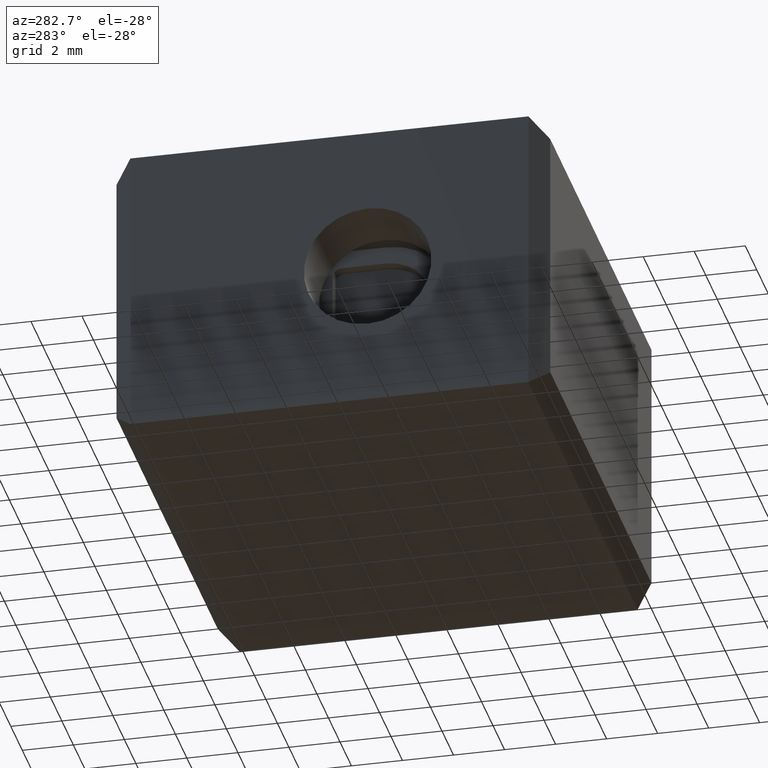
[diagram: clean part render]
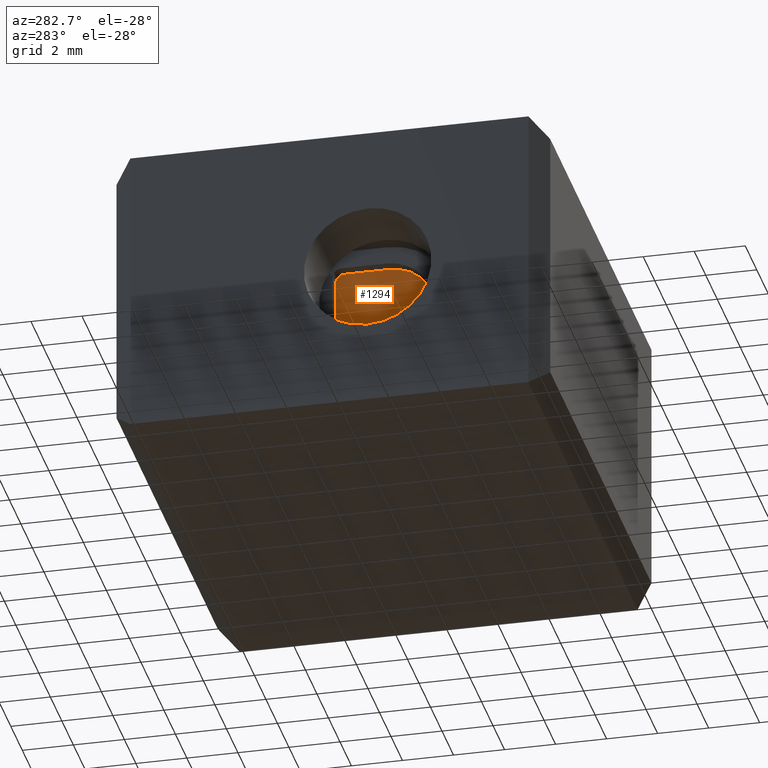
[diagram: same view with one face highlighted and labeled with its STEP entity id]
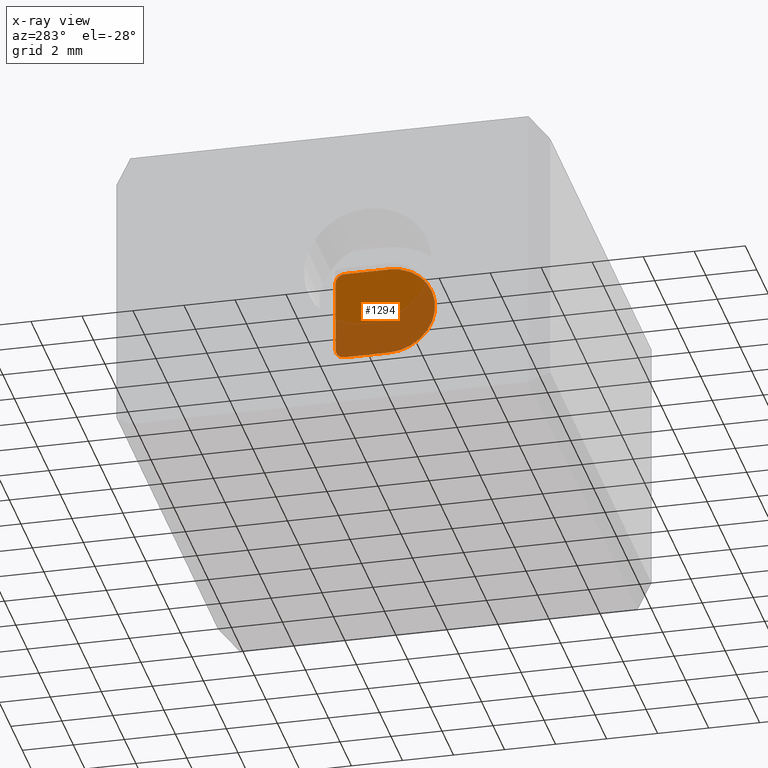
[diagram: x-ray of the same camera — body ghosted, the highlighted face saturated]
A machine part, auxiliary view. The second image highlights one B-rep face of the part: STEP entity #1294.
The next image is the same camera in x-ray: the body ghosted, the highlighted face saturated — about 48% of this face is hidden behind the body in this view.
In plain terms, the highlighted planar face has unit normal (-1, -0, -0).
Its self-contained STEP definition (entity closure, byte-faithful):
#277 = ORIENTED_EDGE ( 'NONE', *, *, #1219, .T. ) ;
#283 = ORIENTED_EDGE ( 'NONE', *, *, #1202, .T. ) ;
#298 = ORIENTED_EDGE ( 'NONE', *, *, #1203, .T. ) ;
#300 = ORIENTED_EDGE ( 'NONE', *, *, #1208, .T. ) ;
#318 = ORIENTED_EDGE ( 'NONE', *, *, #1138, .T. ) ;
#323 = ORIENTED_EDGE ( 'NONE', *, *, #1199, .T. ) ;
#342 = CARTESIAN_POINT ( 'NONE',  ( 3.503805710850899300, 6.999999999999999100, -7.299883141892583400 ) ) ;
#399 = CARTESIAN_POINT ( 'NONE',  ( 3.503805711275780800, 8.749999999999559500, -7.299883141892583400 ) ) ;
#404 = CARTESIAN_POINT ( 'NONE',  ( 3.503805711193165100, 9.099999999999726100, -6.949883141892431800 ) ) ;
#409 = CARTESIAN_POINT ( 'NONE',  ( 3.503805710508633100, 8.749999999999470600, -3.699883141891558800 ) ) ;
#425 = CARTESIAN_POINT ( 'NONE',  ( 3.503805710426017400, 6.999999999999999100, -3.699883141891641400 ) ) ;
#442 = CARTESIAN_POINT ( 'NONE',  ( 3.503805710850899300, 9.099999999999726100, -4.049883141891683600 ) ) ;
#658 = VERTEX_POINT ( 'NONE', #399 ) ;
#661 = VERTEX_POINT ( 'NONE', #342 ) ;
#670 = VERTEX_POINT ( 'NONE', #425 ) ;
#693 = VERTEX_POINT ( 'NONE', #442 ) ;
#697 = VERTEX_POINT ( 'NONE', #409 ) ;
#718 = VERTEX_POINT ( 'NONE', #404 ) ;
#789 = EDGE_LOOP ( 'NONE', ( #300, #277, #323, #318, #298, #283 ) ) ;
#1138 = EDGE_CURVE ( 'NONE', #661, #670, #1563, .T. ) ;
#1199 = EDGE_CURVE ( 'NONE', #658, #661, #2125, .T. ) ;
#1202 = EDGE_CURVE ( 'NONE', #697, #693, #1595, .T. ) ;
#1203 = EDGE_CURVE ( 'NONE', #670, #697, #2147, .T. ) ;
#1208 = EDGE_CURVE ( 'NONE', #693, #718, #2185, .T. ) ;
#1219 = EDGE_CURVE ( 'NONE', #718, #658, #1568, .T. ) ;
#1294 = ADVANCED_FACE ( 'NONE', ( #2590 ), #2612, .T. ) ;
#1533 = AXIS2_PLACEMENT_3D ( 'NONE', #1936, #1960, #1946 ) ;
#1563 = CIRCLE ( 'NONE', #1533, 1.800000000000512500 ) ;
#1567 = VECTOR ( 'NONE', #2176, 1000.000000000000000 ) ;
#1568 = CIRCLE ( 'NONE', #1583, 0.3499999999999996400 ) ;
#1573 = VECTOR ( 'NONE', #2135, 1000.000000000000000 ) ;
#1577 = AXIS2_PLACEMENT_3D ( 'NONE', #2161, #2196, #2183 ) ;
#1583 = AXIS2_PLACEMENT_3D ( 'NONE', #2246, #2234, #2206 ) ;
#1595 = CIRCLE ( 'NONE', #1577, 0.3500000000002563300 ) ;
#1624 = VECTOR ( 'NONE', #2169, 1000.000000000000000 ) ;
#1693 = AXIS2_PLACEMENT_3D ( 'NONE', #2596, #2595, #2589 ) ;
#1936 = CARTESIAN_POINT ( 'NONE',  ( 3.503805710850899300, 6.999999999999999100, -5.499883141892153700 ) ) ;
#1946 = DIRECTION ( 'NONE',  ( -2.360455099128096700E-010, 0.0000000000000000000, 1.000000000000000000 ) ) ;
#1960 = DIRECTION ( 'NONE',  ( -1.000000000000000000, -9.988296160882683500E-017, -2.360454967837791300E-010 ) ) ;
#2125 = LINE ( 'NONE', #2126, #1573 ) ;
#2126 = CARTESIAN_POINT ( 'NONE',  ( 3.503805711275780300, 11.38038375826683600, -7.299883141892584200 ) ) ;
#2135 = DIRECTION ( 'NONE',  ( 9.988296160882683500E-017, -1.000000000000000000, 0.0000000000000000000 ) ) ;
#2147 = LINE ( 'NONE', #2150, #1624 ) ;
#2150 = CARTESIAN_POINT ( 'NONE',  ( 3.503805710426017000, 11.38038375826683600, -3.699883141891558800 ) ) ;
#2161 = CARTESIAN_POINT ( 'NONE',  ( 3.503805710508633100, 8.749999999999470600, -4.049883141891815100 ) ) ;
#2169 = DIRECTION ( 'NONE',  ( -9.988296160882683500E-017, 1.000000000000000000, 0.0000000000000000000 ) ) ;
#2176 = DIRECTION ( 'NONE',  ( 2.360454967837791300E-010, 0.0000000000000000000, -1.000000000000000000 ) ) ;
#2183 = DIRECTION ( 'NONE',  ( -2.360450624641884100E-010, 0.0000000000000000000, 1.000000000000000000 ) ) ;
#2185 = LINE ( 'NONE', #2190, #1567 ) ;
#2190 = CARTESIAN_POINT ( 'NONE',  ( 3.503805715609658000, 9.099999999999726100, -25.66022831229118500 ) ) ;
#2196 = DIRECTION ( 'NONE',  ( -1.000000000000000000, -9.988296160882683500E-017, -2.360454967837791300E-010 ) ) ;
#2206 = DIRECTION ( 'NONE',  ( -2.360450624643615000E-010, 0.0000000000000000000, 1.000000000000000000 ) ) ;
#2234 = DIRECTION ( 'NONE',  ( -1.000000000000000000, -9.988296160882683500E-017, -2.360454967837791300E-010 ) ) ;
#2246 = CARTESIAN_POINT ( 'NONE',  ( 3.503805711193165100, 8.749999999999726400, -6.949883141892583700 ) ) ;
#2589 = DIRECTION ( 'NONE',  ( -2.360454967837791300E-010, 0.0000000000000000000, 1.000000000000000000 ) ) ;
#2590 = FACE_OUTER_BOUND ( 'NONE', #789, .T. ) ;
#2595 = DIRECTION ( 'NONE',  ( -1.000000000000000000, -9.988296160882683500E-017, -2.360454967837791300E-010 ) ) ;
#2596 = CARTESIAN_POINT ( 'NONE',  ( 3.503805715609657600, 11.38038375826683600, -25.66022831229118500 ) ) ;
#2612 = PLANE ( 'NONE',  #1693 ) ;